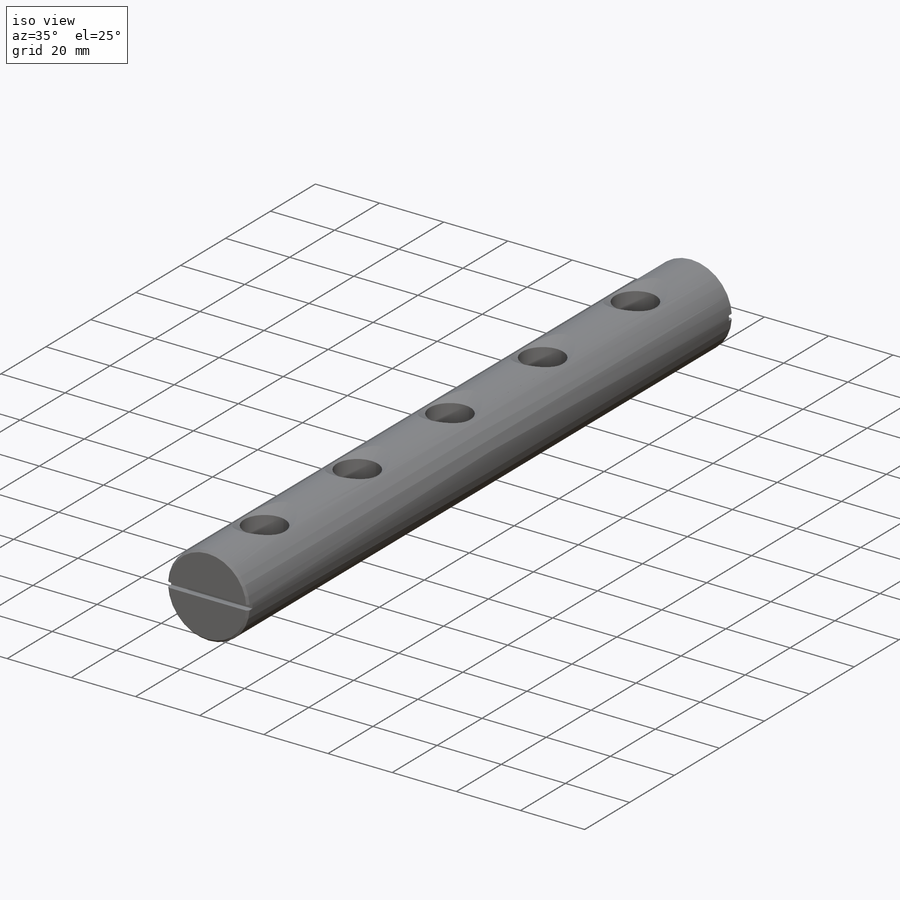
[diagram: iso view]
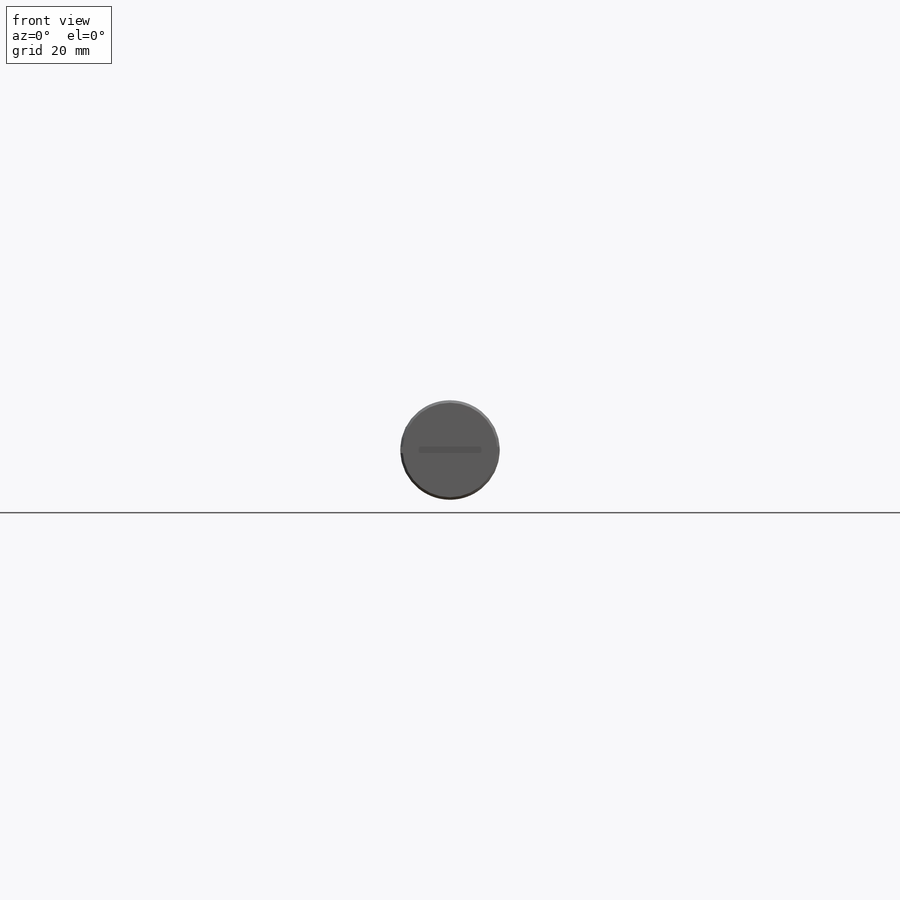
[diagram: front view]
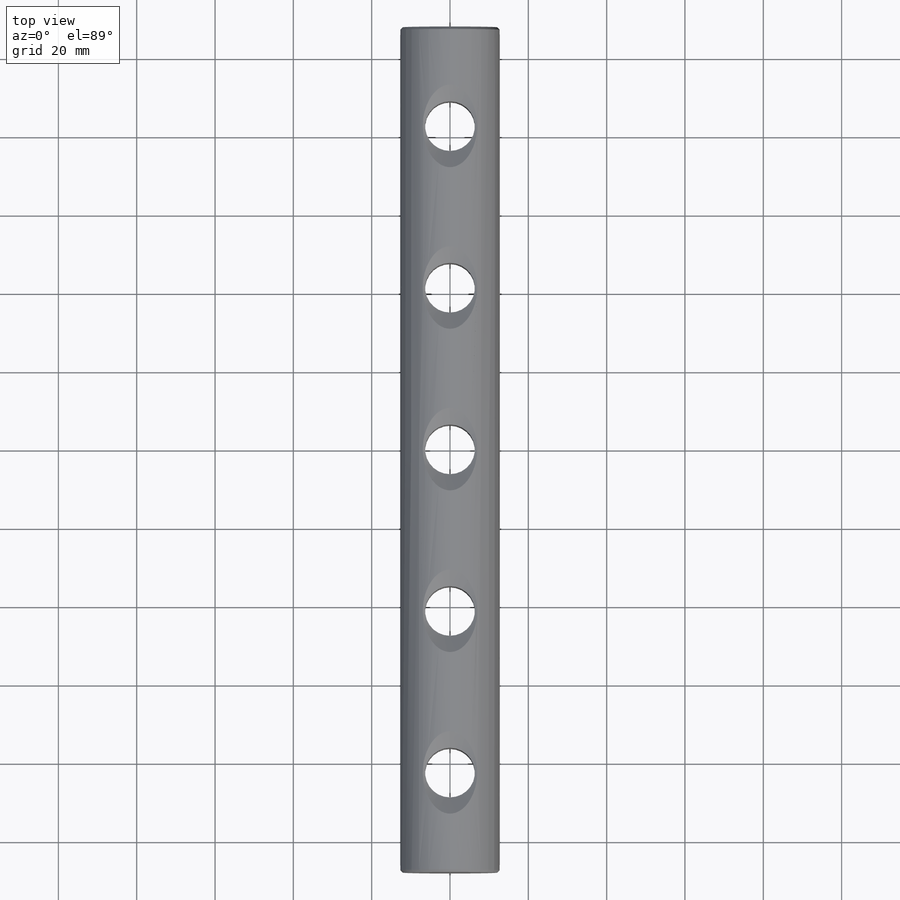
[diagram: top view]
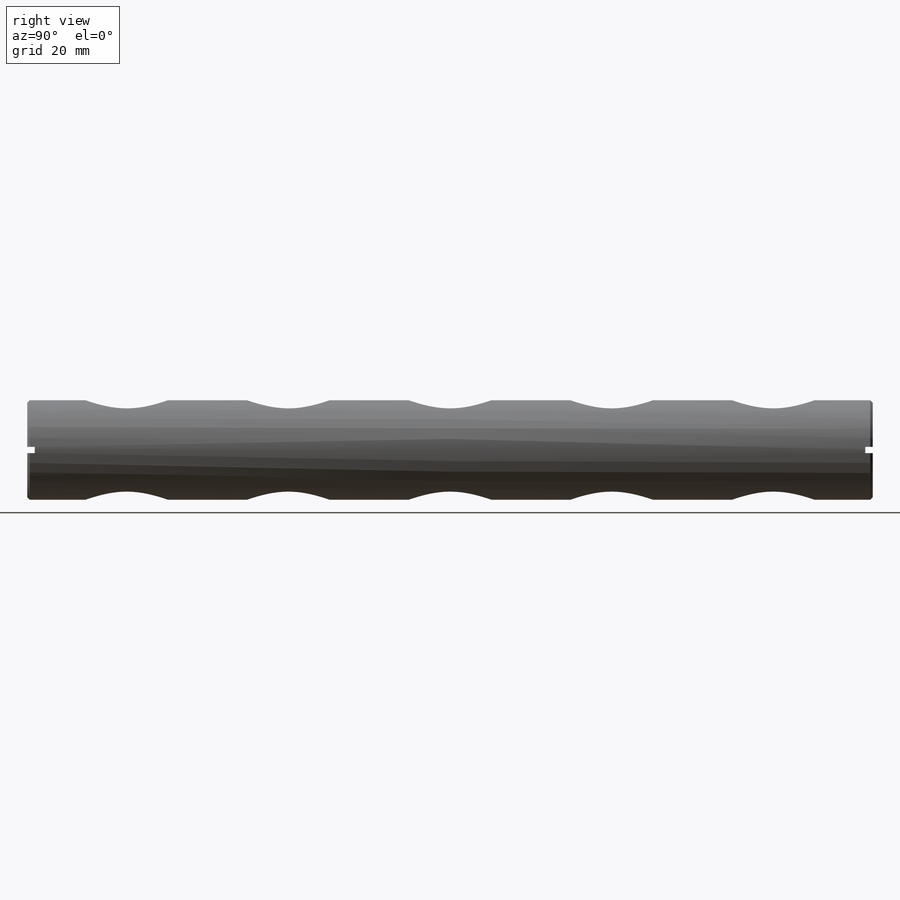
[diagram: right view]
SOLIDWORKS PART (.sldprt)
format: sldprt  version: not decoded by parser v0  size: 327,680 bytes
history: native  units: mm
features: sketch x4, pattern_linear x2, material x1, revolve x1, plane x1, chamfer x1, cut_extrude x1, mirror x1, hole x1 (+14 scaffold rows collapsed)
feature tree (27):
  scaffold x14  (default folders/planes/origin — collapsed)
  material  "NITRONIC 60"
  sketch  "Sketch1"  dims[D1=215.9mm D2=12.7mm D3=25.4mm]
  revolve  "Base-Revolve"  Angle=360deg
  plane  "Plane1"
  chamfer  "Chamfer1"  Distance=0.635mm Angle=45deg
  sketch  "Sketch9"  dims[D1=1.5875mm]
  cut_extrude  "Cut-Extrude2"  Depth=1.905mm
  mirror  "Mirror1"
  hole  "1/2-13 Tapped Hole1"  Diameter=12.7mm Depth=25.4mm
  sketch  "Sketch15"  dims[D1=63.5mm]
  sketch  "Sketch17"  dims[hole-wizard template sketch: 47 standard entries collapsed; hole parameters kept: c15.Thru Tap Drill Depth=25.4mm c15.Near C'Sink Dia.=21.082mm c15.D4=~3.666174mm c15.Near C'Sink Angle=120.0deg c15.Far C'Sink Dia.=21.082mm c15.D6=~9.919017mm c15.Far C'Sink Angle=120.0deg]
  pattern_linear  "LPattern3"  Count1=3 Count2=1 Spacing1=41.275mm Spacing2=63.5mm s=41.275mm
  pattern_linear  "LPattern4"  Count1=3 Count2=1 Spacing1=63.5mm
decode coverage: 10 of 11 modeling features carry decoded parameters
note: ~ marks probable driven/reference dimensions
note: suppression state not decoded; provenance and decode notes live in map.json
